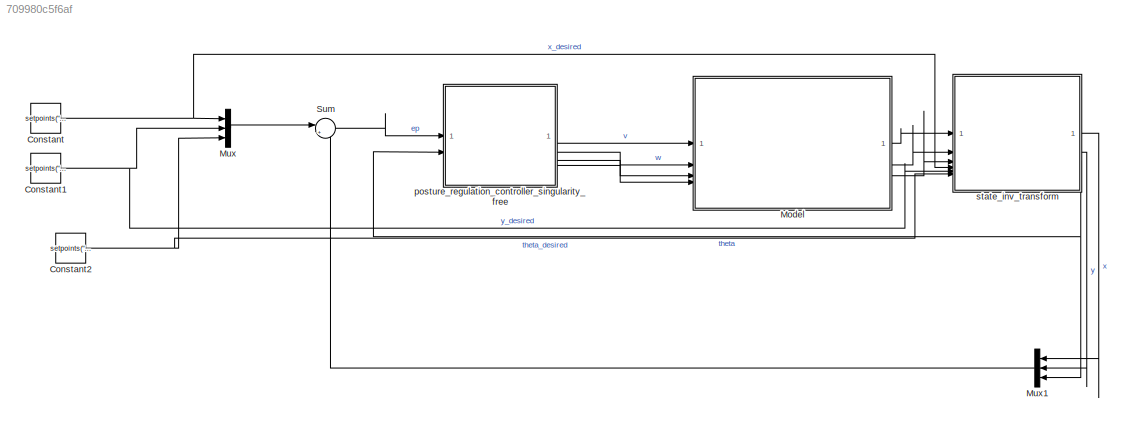
MODEL slx_709980c5f6af
KIND model
CONFIG AbsTol = auto
CONFIG EnableMultiTasking = off
CONFIG FixedStep = auto
CONFIG MaxStep = auto
CONFIG MinStep = auto
CONFIG RelTol = 1e-3
CONFIG SampleTimeConstraint = Unconstrained
CONFIG SolverName = VariableStepAuto
CONFIG StartTime = 0.0
CONFIG StopTime = 10.0
BLOCK [Constant] Constant
  Value = setpoints("setpoint"+sim_trajectory_id).x
BLOCK [Constant] Constant1
  Value = setpoints("setpoint"+sim_trajectory_id).y
BLOCK [Constant] Constant2
  Value = setpoints("setpoint"+sim_trajectory_id).angle
BLOCK [ModelReference] Model
  ModelNameDialog = unicycle_rhogammadelta.slx
  ModelReferenceVersion = 1.2
BLOCK [Mux] Mux
  DisplayOption = bar
  Inputs = 3
BLOCK [Mux] Mux1
  DisplayOption = bar
  Inputs = 3
  NameLocation = top
BLOCK [Sum] Sum
  Inputs = |+-
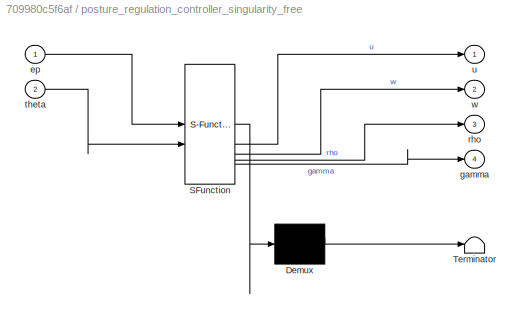
BLOCK [SubSystem] posture_regulation_controller_singularity_free
  ErrorFcn = Stateflow.Translate.translate
  PermitHierarchicalResolution = ExplicitOnly
  SFBlockType = MATLAB Function
  TreatAsAtomicUnit = on
BLOCK [Demux] posture_regulation_controller_singularity_free/ Demux 
  Outputs = 1
BLOCK [S-Function] posture_regulation_controller_singularity_free/ SFunction 
  EnableBusSupport = off
  FunctionName = sf_sfun
  PortCounts = [2 5]
  SFcnIsStateOwnerBlock = off
  SFunctionDeploymentMode = off
  Tag = Stateflow S-Function 1
BLOCK [Terminator] posture_regulation_controller_singularity_free/ Terminator 
BLOCK [Inport] posture_regulation_controller_singularity_free/ep
BLOCK [Outport] posture_regulation_controller_singularity_free/gamma
  Port = 4
BLOCK [Outport] posture_regulation_controller_singularity_free/rho
  Port = 3
BLOCK [Inport] posture_regulation_controller_singularity_free/theta
  Port = 2
BLOCK [Outport] posture_regulation_controller_singularity_free/u
BLOCK [Outport] posture_regulation_controller_singularity_free/w
  Port = 2
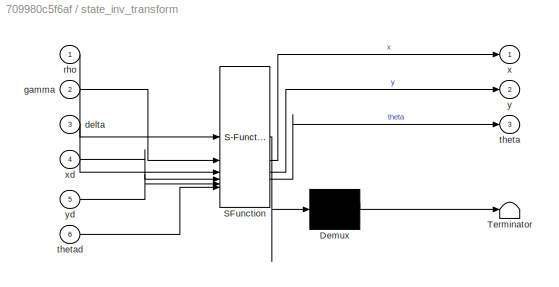
BLOCK [SubSystem] state_inv_transform
  ErrorFcn = Stateflow.Translate.translate
  PermitHierarchicalResolution = ExplicitOnly
  SFBlockType = MATLAB Function
  TreatAsAtomicUnit = on
BLOCK [Demux] state_inv_transform/ Demux 
  Outputs = 1
BLOCK [S-Function] state_inv_transform/ SFunction 
  EnableBusSupport = off
  FunctionName = sf_sfun
  PortCounts = [6 4]
  SFcnIsStateOwnerBlock = off
  SFunctionDeploymentMode = off
  Tag = Stateflow S-Function 2
BLOCK [Terminator] state_inv_transform/ Terminator 
BLOCK [Inport] state_inv_transform/delta
  Port = 3
BLOCK [Inport] state_inv_transform/gamma
  Port = 2
BLOCK [Inport] state_inv_transform/rho
BLOCK [Outport] state_inv_transform/theta
  Port = 3
BLOCK [Inport] state_inv_transform/thetad
  Port = 6
BLOCK [Outport] state_inv_transform/x
BLOCK [Inport] state_inv_transform/xd
  Port = 4
BLOCK [Outport] state_inv_transform/y
  Port = 2
BLOCK [Inport] state_inv_transform/yd
  Port = 5
NET Constant1:1 -> Mux:2, state_inv_transform:5
NET Constant2:1 -> Mux:3, state_inv_transform:6
NET Constant:1 -> Mux:1, state_inv_transform:4
LINE Model:1 -> state_inv_transform:1
LINE Model:2 -> state_inv_transform:2
LINE Model:3 -> state_inv_transform:3
LINE Mux1:1 -> Sum:2
LINE Mux:1 -> Sum:1
LINE Sum:1 -> posture_regulation_controller_singularity_free:1
LINE posture_regulation_controller_singularity_free:1 -> Model:1
LINE posture_regulation_controller_singularity_free:2 -> Model:2
LINE posture_regulation_controller_singularity_free:3 -> Model:3
LINE posture_regulation_controller_singularity_free:4 -> Model:4
LINE state_inv_transform:1 -> Mux1:1
LINE state_inv_transform:2 -> Mux1:2
NET state_inv_transform:3 -> Mux1:3, posture_regulation_controller_singularity_free:2
note: NET lines group one-source signal fan-out (src -> all destinations, sorted); 1:1 wires keep LINE
CHART posture_regulation_controller_singularity_free states=1 transitions=1
  STATE_LABEL 'eML_blk_kernel()'
  STATE_LABEL 'SCRIPT:\nfunction [u, w, rho, gamma] = fcn(ep, theta)\n\ndx = ep(1);\ndy = ep(2);\ndtheta = -ep(3);\n\nrho   = sqrt(dx^2 + dy^2);\n%alpha = wrapToPi(atan2(dy, dx) - theta); \n%beta  = wrapToPi(dtheta - alpha);\ngamma = wrapToPi(atan2(dy, dx) - theta);\ndelta = wrapToPi(dtheta - gamma);\n\nk1 = 1;%1\nk2 = 4;%4\nk3 = 1.5;%1.5\n\nu = k1 * cos(gamma);\nw = k2 * gamma + k1 * sin(gamma) * cos(gamma)/gamma * (gamma+k3*del...<+11ch>'
CHART state_inv_transform states=1 transitions=1
  STATE_LABEL 'eML_blk_kernel()'
  STATE_LABEL 'SCRIPT:\nfunction [x,y,theta] = fcn(rho, gamma, delta, xd, yd, thetad)\nx     = xd - rho*cos(thetad+2*gamma+delta);\ny     = yd - rho*sin(thetad+2*gamma+delta);\ntheta = thetad+gamma+delta;\ntheta = wrapToPi(theta);\nend\n'
CHART  states=0 transitions=0
CHART  states=0 transitions=0
